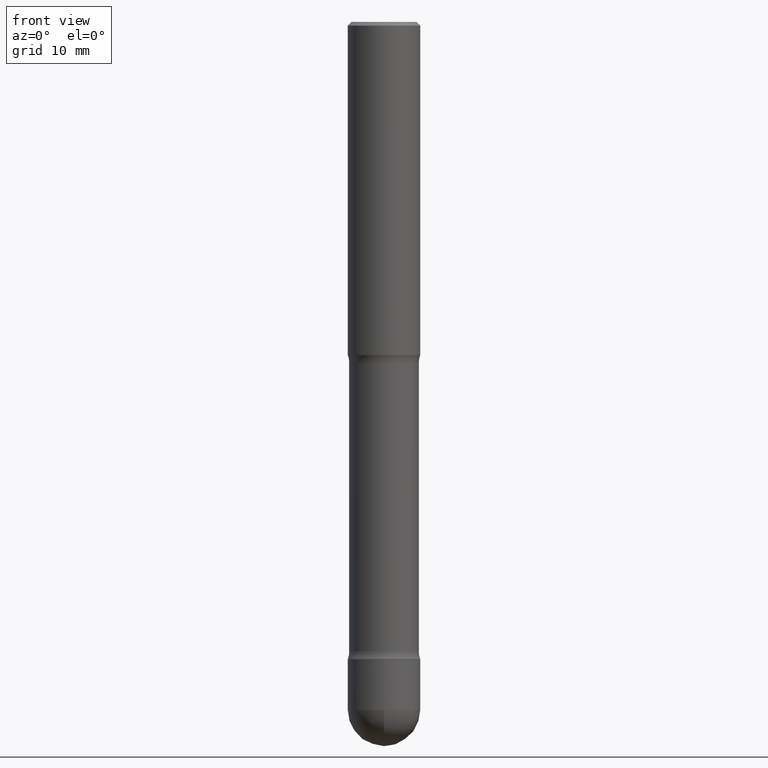
[diagram: clean part render]
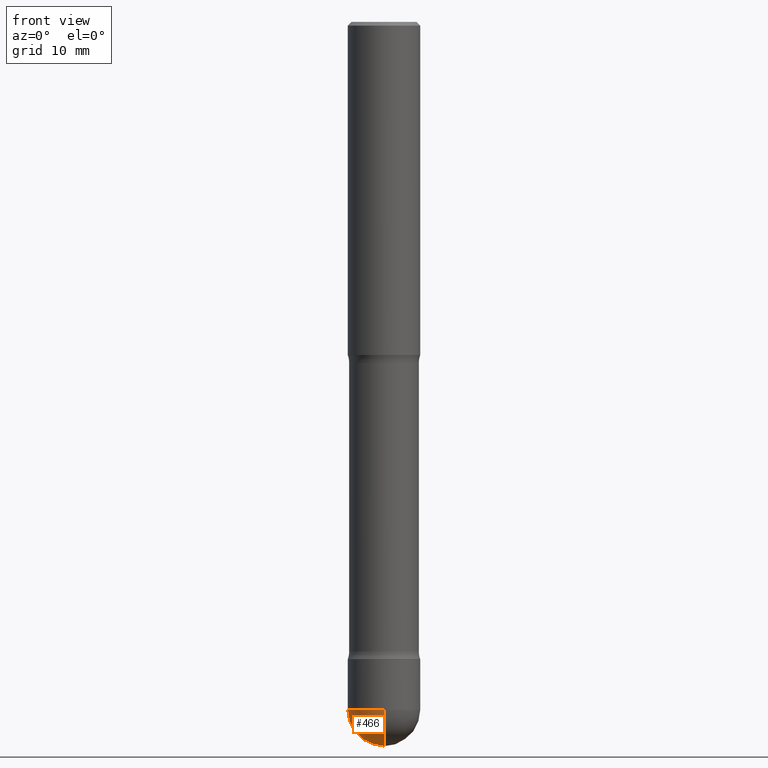
[diagram: same view with one face highlighted and labeled with its STEP entity id]
A machine part, front view. The second image highlights one B-rep face of the part: STEP entity #466.
In plain terms, the highlighted spherical surface has radius 5 mm.
Its self-contained STEP definition (entity closure, byte-faithful):
#35 = EDGE_CURVE ( 'NONE', #561, #377, #142, .T. ) ;
#39 = CARTESIAN_POINT ( 'NONE',  ( 1.398703375343844365E-15, 0.1968499999999863970, -3.740150000000000752 ) ) ;
#56 = CIRCLE ( 'NONE', #399, 0.1968499999999995809 ) ;
#73 = DIRECTION ( 'NONE',  ( 1.000000000000000000, -6.982962677686263555E-15, 0.000000000000000000 ) ) ;
#74 = ORIENTED_EDGE ( 'NONE', *, *, #421, .T. ) ;
#115 = CARTESIAN_POINT ( 'NONE',  ( 9.146420155453339430E-29, -1.305866392947419182E-14, -3.740150000000000308 ) ) ;
#118 = DIRECTION ( 'NONE',  ( 7.105427357600999492E-15, 1.000000000000000000, 0.000000000000000000 ) ) ;
#124 = SPHERICAL_SURFACE ( 'NONE', #566, 0.1968499999999995809 ) ;
#135 = DIRECTION ( 'NONE',  ( -6.982962677686266711E-15, -1.000000000000000000, 0.000000000000000000 ) ) ;
#139 = ORIENTED_EDGE ( 'NONE', *, *, #262, .F. ) ;
#142 = CIRCLE ( 'NONE', #311, 0.1968499999999993033 ) ;
#146 = ORIENTED_EDGE ( 'NONE', *, *, #35, .F. ) ;
#148 = CARTESIAN_POINT ( 'NONE',  ( -0.1968499999999993033, -1.117892171267132551E-14, -3.740150000000000308 ) ) ;
#149 = VERTEX_POINT ( 'NONE', #232 ) ;
#152 = DIRECTION ( 'NONE',  ( -2.445468806185136597E-29, 3.491481338843145583E-15, 1.000000000000000000 ) ) ;
#175 = CARTESIAN_POINT ( 'NONE',  ( -1.374596203102446353E-15, -0.1968500000000124872, -3.740149999999999864 ) ) ;
#188 = EDGE_CURVE ( 'NONE', #149, #373, #504, .T. ) ;
#213 = FACE_OUTER_BOUND ( 'NONE', #402, .T. ) ;
#217 = CARTESIAN_POINT ( 'NONE',  ( 9.129586207050842305E-29, -1.308277110171540879E-14, -3.740150000000000308 ) ) ;
#232 = CARTESIAN_POINT ( 'NONE',  ( 9.602559767347136862E-29, -1.378212278938728887E-14, -3.937000000000000277 ) ) ;
#244 = DIRECTION ( 'NONE',  ( 1.000000000000000000, -7.105427357601001070E-15, 4.926315508542082329E-29 ) ) ;
#247 = AXIS2_PLACEMENT_3D ( 'NONE', #496, #152, #301 ) ;
#262 = EDGE_CURVE ( 'NONE', #373, #561, #516, .T. ) ;
#263 = DIRECTION ( 'NONE',  ( -6.982962677686266711E-15, -1.000000000000000000, 2.775563112689123006E-15 ) ) ;
#276 = AXIS2_PLACEMENT_3D ( 'NONE', #289, #244, #118 ) ;
#289 = CARTESIAN_POINT ( 'NONE',  ( 9.129586207050842305E-29, -1.308277110171540879E-14, -3.740150000000000308 ) ) ;
#301 = DIRECTION ( 'NONE',  ( 1.000000000000000000, -6.982962677686263555E-15, 0.000000000000000000 ) ) ;
#304 = DIRECTION ( 'NONE',  ( 1.000000000000000000, -6.982962677686266711E-15, 4.883557194083113462E-29 ) ) ;
#311 = AXIS2_PLACEMENT_3D ( 'NONE', #115, #497, #73 ) ;
#373 = VERTEX_POINT ( 'NONE', #39 ) ;
#377 = VERTEX_POINT ( 'NONE', #175 ) ;
#399 = AXIS2_PLACEMENT_3D ( 'NONE', #217, #525, #135 ) ;
#402 = EDGE_LOOP ( 'NONE', ( #501, #74, #146, #139 ) ) ;
#421 = EDGE_CURVE ( 'NONE', #149, #377, #56, .T. ) ;
#466 = ADVANCED_FACE ( 'NONE', ( #213 ), #124, .T. ) ;
#496 = CARTESIAN_POINT ( 'NONE',  ( 9.146420155453339430E-29, -1.305866392947419182E-14, -3.740150000000000308 ) ) ;
#497 = DIRECTION ( 'NONE',  ( -2.445468806185136597E-29, 3.491481338843145583E-15, 1.000000000000000000 ) ) ;
#501 = ORIENTED_EDGE ( 'NONE', *, *, #188, .F. ) ;
#504 = CIRCLE ( 'NONE', #276, 0.1968499999999995809 ) ;
#516 = CIRCLE ( 'NONE', #247, 0.1968499999999993033 ) ;
#525 = DIRECTION ( 'NONE',  ( -1.000000000000000000, 6.982962677686265922E-15, -4.883557194083112340E-29 ) ) ;
#560 = CARTESIAN_POINT ( 'NONE',  ( 9.129586207050842305E-29, -1.308277110171540879E-14, -3.740150000000000308 ) ) ;
#561 = VERTEX_POINT ( 'NONE', #148 ) ;
#566 = AXIS2_PLACEMENT_3D ( 'NONE', #560, #304, #263 ) ;